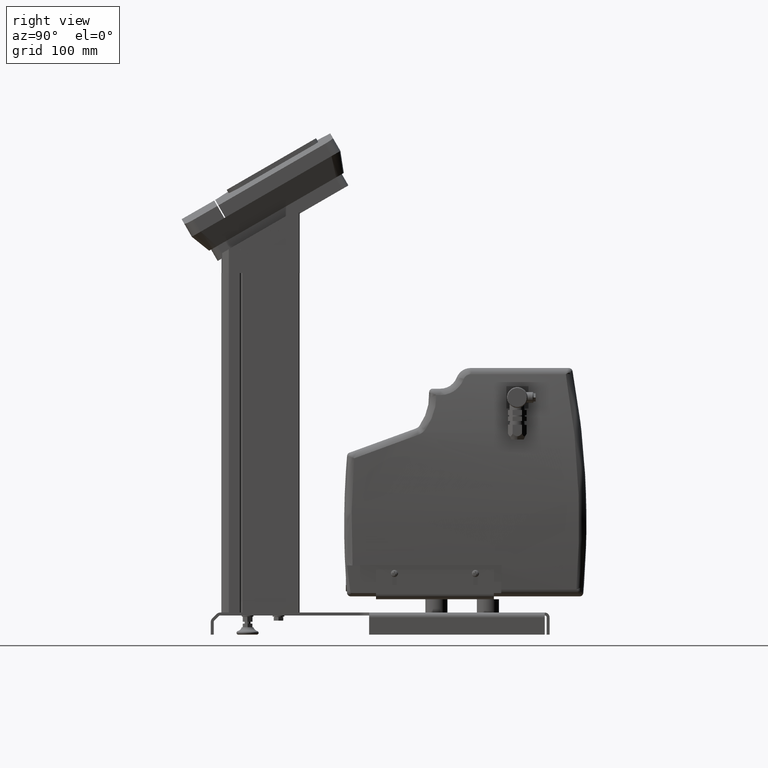
[diagram: clean part render]
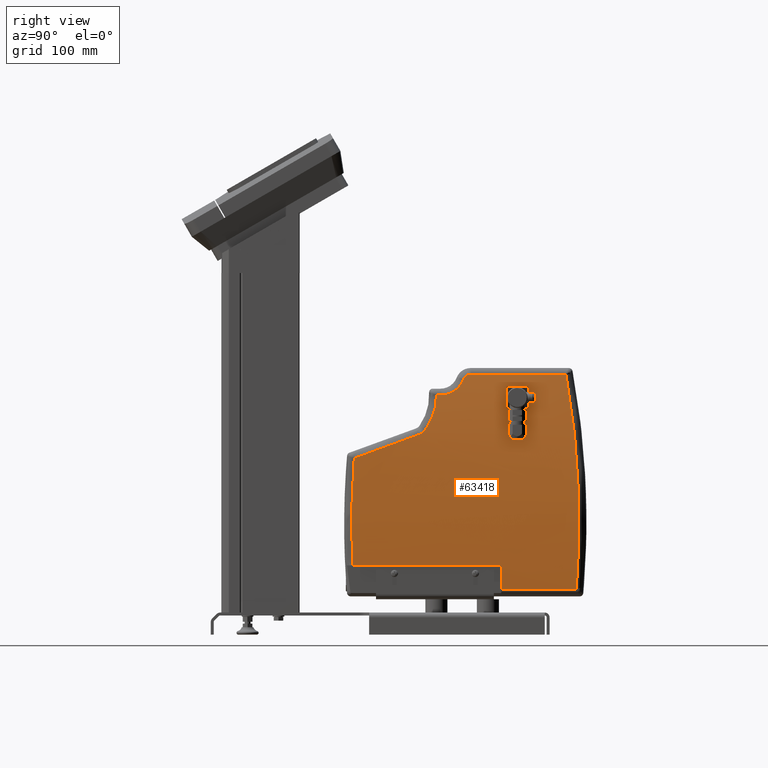
[diagram: same view with one face highlighted and labeled with its STEP entity id]
A machine part, right view. The second image highlights one B-rep face of the part: STEP entity #63418.
In plain terms, the highlighted cylindrical surface (partial cylindrical patch) has radius 1323.98 mm, axis along (-0, -1, -0).
Its self-contained STEP definition (entity closure, byte-faithful):
#62763=CARTESIAN_POINT('',(88.601441545151289,160.13,93.249999999999929));
#62764=VERTEX_POINT('',#62763);
#62765=CARTESIAN_POINT('',(86.691151156861409,160.13,60.543452535470379));
#62766=VERTEX_POINT('',#62765);
#62767=CARTESIAN_POINT('',(-1233.9793513774807,160.13,154.08887791599176));
#62768=DIRECTION('',(-1.422539E-017,1.0,1.108292E-018));
#62769=DIRECTION('',(-0.996978804846285,-1.426850E-017,0.077674079893313));
#62770=AXIS2_PLACEMENT_3D('',#62767,#62768,#62769);
#62771=CIRCLE('',#62770,1323.9793513774807);
#62772=EDGE_CURVE('',#62764,#62766,#62771,.T.);
#62863=CARTESIAN_POINT('',(88.601441545151275,-41.755331376253139,93.249999999999872));
#62864=VERTEX_POINT('',#62863);
#62865=CARTESIAN_POINT('',(88.601441545151289,-41.755331376253153,93.249999999999886));
#62866=DIRECTION('',(0.0,1.0,0.0));
#62867=VECTOR('',#62866,201.88533137625313);
#62868=LINE('',#62865,#62867);
#62869=EDGE_CURVE('',#62864,#62764,#62868,.T.);
#63250=CARTESIAN_POINT('',(-1233.9793513774807,111.13499999999996,154.08887791599176));
#63251=DIRECTION('',(-5.624099E-032,-1.0,-1.836970E-016));
#63252=DIRECTION('',(-0.996978804846285,-1.426850E-017,0.077674079893313));
#63253=AXIS2_PLACEMENT_3D('',#63250,#63251,#63252);
#63254=CYLINDRICAL_SURFACE('',#63253,1323.9793513774807);
#63255=ORIENTED_EDGE('',*,*,#62869,.T.);
#63256=ORIENTED_EDGE('',*,*,#62772,.T.);
#63257=CARTESIAN_POINT('',(86.691151156861409,261.97502823482637,60.543452535468262));
#63258=VERTEX_POINT('',#63257);
#63259=CARTESIAN_POINT('',(86.691151156861409,261.97502823482637,60.543452535470401));
#63260=DIRECTION('',(0.0,-1.0,0.0));
#63261=VECTOR('',#63260,101.84502823482637);
#63262=LINE('',#63259,#63261);
#63263=EDGE_CURVE('',#63258,#62766,#63262,.T.);
#63264=ORIENTED_EDGE('',*,*,#63263,.F.);
#63265=CARTESIAN_POINT('',(75.010674275461852,247.83038403177667,352.75048873963124));
#63266=VERTEX_POINT('',#63265);
#63267=CARTESIAN_POINT('',(75.010762962781868,247.83050527546931,352.74994149082806));
#63268=CARTESIAN_POINT('',(75.74919117439957,248.71393988197423,347.88437470789728));
#63269=CARTESIAN_POINT('',(76.461548993900891,249.56601745255776,343.00771924340074));
#63270=CARTESIAN_POINT('',(80.65876125277444,254.58588918635184,313.10476654513258));
#63271=CARTESIAN_POINT('',(83.476248082035269,257.95315925040433,287.81463408372247));
#63272=CARTESIAN_POINT('',(86.866661126283077,262.01230527744269,246.50770822434578));
#63273=CARTESIAN_POINT('',(87.885595526410825,263.2344672736574,230.57012799420892));
#63274=CARTESIAN_POINT('',(88.980668680865151,264.55388502649043,206.64225410973324));
#63275=CARTESIAN_POINT('',(89.273611280933281,264.90820971955827,198.66300247474669));
#63276=CARTESIAN_POINT('',(89.848011111690042,265.60762018923651,177.88184743678784));
#63277=CARTESIAN_POINT('',(90.016545000868106,265.818930708295,165.06804088983381));
#63278=CARTESIAN_POINT('',(89.97020068269002,265.79461550538093,131.73603534737987));
#63279=CARTESIAN_POINT('',(89.463987559396614,265.21410626780221,111.2082769109639));
#63280=CARTESIAN_POINT('',(88.000738427995302,263.50861489012578,80.659120514181097));
#63281=CARTESIAN_POINT('',(87.402453781633696,262.80897813078519,70.588814773445336));
#63282=CARTESIAN_POINT('',(86.690899334655143,261.97476328187241,60.543598576679756));
#63283=B_SPLINE_CURVE_WITH_KNOTS('',3,(#63267,#63268,#63269,#63270,#63271,#63272,#63273,#63274,#63275,#63276,#63277,#63278,#63279,#63280,#63281,#63282),.UNSPECIFIED.,.F.,.U.,(4,2,2,2,2,2,2,4),(5.175708728468274,6.663674528679406,14.279302561455872,19.039070081941162,21.418953842183807,25.226767858572039,31.319270284793209,34.322254463356607),.UNSPECIFIED.);
#63284=EDGE_CURVE('',#63266,#63258,#63283,.T.);
#63285=ORIENTED_EDGE('',*,*,#63284,.F.);
#63286=CARTESIAN_POINT('',(75.010674275463145,118.51382209459317,352.75048873962345));
#63287=VERTEX_POINT('',#63286);
#63288=CARTESIAN_POINT('',(75.010674275463145,118.51382209459317,352.75048873962345));
#63289=DIRECTION('',(0.0,1.0,0.0));
#63290=VECTOR('',#63289,129.31656193718351);
#63291=LINE('',#63288,#63290);
#63292=EDGE_CURVE('',#63287,#63266,#63291,.T.);
#63293=ORIENTED_EDGE('',*,*,#63292,.F.);
#63294=CARTESIAN_POINT('',(75.968142067331542,109.19740518504291,346.33582143288783));
#63295=VERTEX_POINT('',#63294);
#63296=CARTESIAN_POINT('',(75.968142067331542,109.19740518504291,346.33582143288783));
#63297=CARTESIAN_POINT('',(75.774639208175643,109.70779169285808,347.65432658406803));
#63298=CARTESIAN_POINT('',(75.594013550638635,110.50301792442748,348.87064690695911));
#63299=CARTESIAN_POINT('',(75.311060097992311,112.41687794712318,350.76313708327899));
#63300=CARTESIAN_POINT('',(75.200384289233,113.51769078104201,351.49705666336121));
#63301=CARTESIAN_POINT('',(75.079804678601306,115.43503072394985,352.29469288211675));
#63302=CARTESIAN_POINT('',(75.046436797480666,116.21735256503838,352.51474300260202));
#63303=CARTESIAN_POINT('',(75.016423868217132,117.51186135668245,352.7126156414958));
#63304=CARTESIAN_POINT('',(75.01067427546343,118.01465742361052,352.75048873962402));
#63305=CARTESIAN_POINT('',(75.01067427546343,118.51382209459317,352.75048873962402));
#63306=B_SPLINE_CURVE_WITH_KNOTS('',3,(#63296,#63297,#63298,#63299,#63300,#63301,#63302,#63303,#63304,#63305),.UNSPECIFIED.,.F.,.U.,(4,2,2,2,4),(0.0,0.425288299677221,0.8086467669919,1.048245809063575,1.197995210358371),.UNSPECIFIED.);
#63307=EDGE_CURVE('',#63295,#63287,#63306,.T.);
#63308=ORIENTED_EDGE('',*,*,#63307,.F.);
#63309=CARTESIAN_POINT('',(78.991967721079092,77.43142204702832,324.46387050153106));
#63310=VERTEX_POINT('',#63309);
#63311=CARTESIAN_POINT('',(78.991967721079092,77.43142204702832,324.46387050153106));
#63312=CARTESIAN_POINT('',(78.991967721079092,82.262065735856936,324.46387050153106));
#63313=CARTESIAN_POINT('',(78.85616925086255,87.108544698589242,325.51911235847905));
#63314=CARTESIAN_POINT('',(78.351409843855649,95.472770782146668,329.33907853283119));
#63315=CARTESIAN_POINT('',(78.000297278470626,99.13834899919533,331.9678420405665));
#63316=CARTESIAN_POINT('',(77.290579667260573,103.99578249533039,337.10930237585291));
#63317=CARTESIAN_POINT('',(76.978800238860387,105.64548888390853,339.33422294533329));
#63318=CARTESIAN_POINT('',(76.424662485137787,107.85064907446571,343.20499344045851));
#63319=CARTESIAN_POINT('',(76.200315151836605,108.58502141807364,344.75382202874118));
#63320=CARTESIAN_POINT('',(75.968142067331542,109.19740518504288,346.33582143288783));
#63321=B_SPLINE_CURVE_WITH_KNOTS('',3,(#63311,#63312,#63313,#63314,#63315,#63316,#63317,#63318,#63319,#63320),.UNSPECIFIED.,.F.,.U.,(4,2,2,2,4),(0.0,1.449193106648585,2.755508019683932,3.571954840331023,4.082234103235455),.UNSPECIFIED.);
#63322=EDGE_CURVE('',#63310,#63295,#63321,.T.);
#63323=ORIENTED_EDGE('',*,*,#63322,.F.);
#63324=CARTESIAN_POINT('',(78.991967721079135,72.264489843812456,324.46387050153118));
#63325=VERTEX_POINT('',#63324);
#63326=CARTESIAN_POINT('',(78.991967721079092,72.264489843812456,324.46387050153106));
#63327=DIRECTION('',(0.0,1.0,0.0));
#63328=VECTOR('',#63327,5.166932203215865);
#63329=LINE('',#63326,#63328);
#63330=EDGE_CURVE('',#63325,#63310,#63329,.T.);
#63331=ORIENTED_EDGE('',*,*,#63330,.F.);
#63332=CARTESIAN_POINT('',(84.201942660789172,57.186334254031578,277.8604373370776));
#63333=VERTEX_POINT('',#63332);
#63334=CARTESIAN_POINT('',(84.201942660789172,57.186334254031578,277.8604373370776));
#63335=CARTESIAN_POINT('',(83.453209226751625,62.856455826206151,285.83453422642481));
#63336=CARTESIAN_POINT('',(82.514354542700914,67.133004961657122,295.00220926173921));
#63337=CARTESIAN_POINT('',(80.688490253723572,71.307607624906638,310.97275646788393));
#63338=CARTESIAN_POINT('',(79.867747758794607,72.206598506307316,317.71421589466433));
#63339=CARTESIAN_POINT('',(78.991955219558733,72.264470993307455,324.46394041773709));
#63340=B_SPLINE_CURVE_WITH_KNOTS('',3,(#63334,#63335,#63336,#63337,#63338,#63339),.UNSPECIFIED.,.F.,.U.,(4,2,4),(0.0,2.929139542646406,4.937938804636153),.UNSPECIFIED.);
#63341=EDGE_CURVE('',#63333,#63325,#63340,.T.);
#63342=ORIENTED_EDGE('',*,*,#63341,.F.);
#63343=CARTESIAN_POINT('',(84.858153322598838,47.76895094534779,270.66056860632267));
#63344=VERTEX_POINT('',#63343);
#63345=CARTESIAN_POINT('',(84.858153322598838,47.76895094534779,270.66056860632267));
#63346=CARTESIAN_POINT('',(84.815011293705311,49.099834992708566,271.14865731290899));
#63347=CARTESIAN_POINT('',(84.758538704623447,50.388996936726784,271.78462301084636));
#63348=CARTESIAN_POINT('',(84.628055117474204,52.676362255137228,273.23714021173043));
#63349=CARTESIAN_POINT('',(84.556664386996189,53.688526171798401,274.02588622154309));
#63350=CARTESIAN_POINT('',(84.425031228073337,55.206027277995517,275.4623288658828));
#63351=CARTESIAN_POINT('',(84.370746594143696,55.757275060813647,276.05086927657089));
#63352=CARTESIAN_POINT('',(84.277360401101589,56.590888423153309,277.05519536272408));
#63353=CARTESIAN_POINT('',(84.24020247409986,56.896594564392728,277.45296594013121));
#63354=CARTESIAN_POINT('',(84.201942660789172,57.1863342540316,277.8604373370776));
#63355=B_SPLINE_CURVE_WITH_KNOTS('',3,(#63345,#63346,#63347,#63348,#63349,#63350,#63351,#63352,#63353,#63354),.UNSPECIFIED.,.F.,.U.,(4,2,2,2,4),(0.0,0.425083278759825,0.808256938486993,1.047740475816473,1.197417686647397),.UNSPECIFIED.);
#63356=EDGE_CURVE('',#63344,#63333,#63355,.T.);
#63357=ORIENTED_EDGE('',*,*,#63356,.F.);
#63358=CARTESIAN_POINT('',(87.295067870577341,-39.440155476790267,238.67748184490063));
#63359=VERTEX_POINT('',#63358);
#63360=CARTESIAN_POINT('',(-1233.9793513774807,-270.09008045632913,154.0888779159917));
#63361=DIRECTION('',(3.739514E-016,-0.344315519300506,0.938853994595977));
#63362=DIRECTION('',(1.054162E-016,0.938853994595977,0.344315519300506));
#63363=AXIS2_PLACEMENT_3D('',#63360,#63361,#63362);
#63364=ELLIPSE('',#63363,3845.2502927175992,1323.979351377481);
#63365=EDGE_CURVE('',#63359,#63344,#63364,.T.);
#63366=ORIENTED_EDGE('',*,*,#63365,.F.);
#63367=CARTESIAN_POINT('',(88.601418660295494,-41.755310269263447,93.249577266109014));
#63368=CARTESIAN_POINT('',(89.660823300275737,-42.888771995396951,116.28048084242964));
#63369=CARTESIAN_POINT('',(90.119073835978867,-43.309907559971123,139.35108854546843));
#63370=CARTESIAN_POINT('',(89.875831982587101,-42.818581201556128,177.97375001161021));
#63371=CARTESIAN_POINT('',(89.503646611387154,-42.295889984011524,193.53999163999691));
#63372=CARTESIAN_POINT('',(88.533597214534197,-41.023454599434501,216.86946446009688));
#63373=CARTESIAN_POINT('',(88.141675589328571,-40.517968934568842,224.64260690179964));
#63374=CARTESIAN_POINT('',(87.557631641494524,-39.773537133737619,234.4985183988037));
#63375=CARTESIAN_POINT('',(87.428813645512648,-39.609774259215413,236.58831623323846));
#63376=CARTESIAN_POINT('',(87.295060232162214,-39.44014743083909,238.67748166998945));
#63377=B_SPLINE_CURVE_WITH_KNOTS('',3,(#63367,#63368,#63369,#63370,#63371,#63372,#63373,#63374,#63375,#63376),.UNSPECIFIED.,.F.,.U.,(4,2,2,2,4),(7.009786163870244,13.87429059637191,18.499054128495882,20.811435894557867,21.433886595432284),.UNSPECIFIED.);
#63378=EDGE_CURVE('',#62864,#63359,#63377,.T.);
#63379=ORIENTED_EDGE('',*,*,#63378,.F.);
#63380=EDGE_LOOP('',(#63255,#63256,#63264,#63285,#63293,#63308,#63323,#63331,#63342,#63357,#63366,#63379));
#63381=FACE_OUTER_BOUND('',#63380,.T.);
#63382=CARTESIAN_POINT('',(81.22721635249755,166.90555748578493,306.24999999999977));
#63383=VERTEX_POINT('',#63382);
#63384=CARTESIAN_POINT('',(77.40871036283788,166.90555748578493,336.24999999999972));
#63385=VERTEX_POINT('',#63384);
#63386=CARTESIAN_POINT('',(-1233.9793513774807,166.90555748578498,154.08887791599176));
#63387=DIRECTION('',(1.422539E-017,-1.0,-1.108292E-018));
#63388=DIRECTION('',(-0.996978804846285,-1.426850E-017,0.077674079893313));
#63389=AXIS2_PLACEMENT_3D('',#63386,#63387,#63388);
#63390=CIRCLE('',#63389,1323.9793513774807);
#63391=EDGE_CURVE('',#63383,#63385,#63390,.T.);
#63392=ORIENTED_EDGE('',*,*,#63391,.T.);
#63393=CARTESIAN_POINT('',(77.40871036283788,196.90555748578493,336.24999999999972));
#63394=VERTEX_POINT('',#63393);
#63395=CARTESIAN_POINT('',(77.40871036283788,166.90555748578493,336.24999999999983));
#63396=DIRECTION('',(0.0,1.0,0.0));
#63397=VECTOR('',#63396,30.0);
#63398=LINE('',#63395,#63397);
#63399=EDGE_CURVE('',#63385,#63394,#63398,.T.);
#63400=ORIENTED_EDGE('',*,*,#63399,.T.);
#63401=CARTESIAN_POINT('',(81.22721635249755,196.90555748578493,306.24999999999977));
#63402=VERTEX_POINT('',#63401);
#63403=CARTESIAN_POINT('',(-1233.9793513774807,196.90555748578498,154.08887791599179));
#63404=DIRECTION('',(-1.422539E-017,1.0,1.108292E-018));
#63405=DIRECTION('',(-0.996978804846285,-1.426850E-017,0.077674079893313));
#63406=AXIS2_PLACEMENT_3D('',#63403,#63404,#63405);
#63407=CIRCLE('',#63406,1323.9793513774807);
#63408=EDGE_CURVE('',#63394,#63402,#63407,.T.);
#63409=ORIENTED_EDGE('',*,*,#63408,.T.);
#63410=CARTESIAN_POINT('',(81.22721635249755,196.90555748578493,306.24999999999977));
#63411=DIRECTION('',(0.0,-1.0,0.0));
#63412=VECTOR('',#63411,30.0);
#63413=LINE('',#63410,#63412);
#63414=EDGE_CURVE('',#63402,#63383,#63413,.T.);
#63415=ORIENTED_EDGE('',*,*,#63414,.T.);
#63416=EDGE_LOOP('',(#63392,#63400,#63409,#63415));
#63417=FACE_BOUND('',#63416,.T.);
#63418=ADVANCED_FACE('',(#63381,#63417),#63254,.T.);